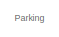
[diagram: root canvas - part 1/7, top left region]
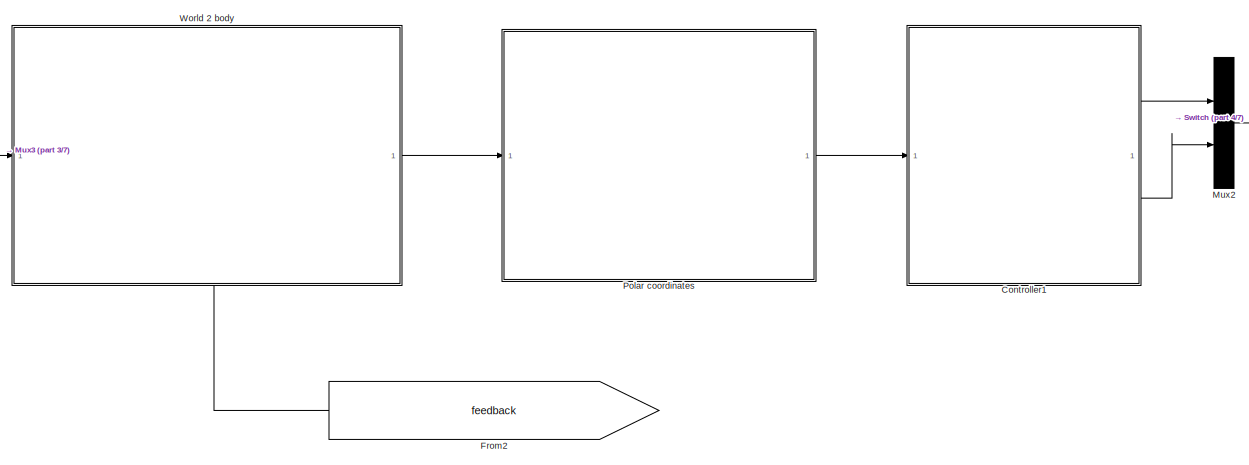
[diagram: root canvas - part 2/7, top center region]
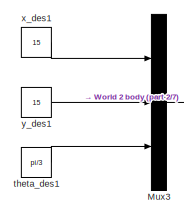
[diagram: root canvas - part 3/7, top left region]
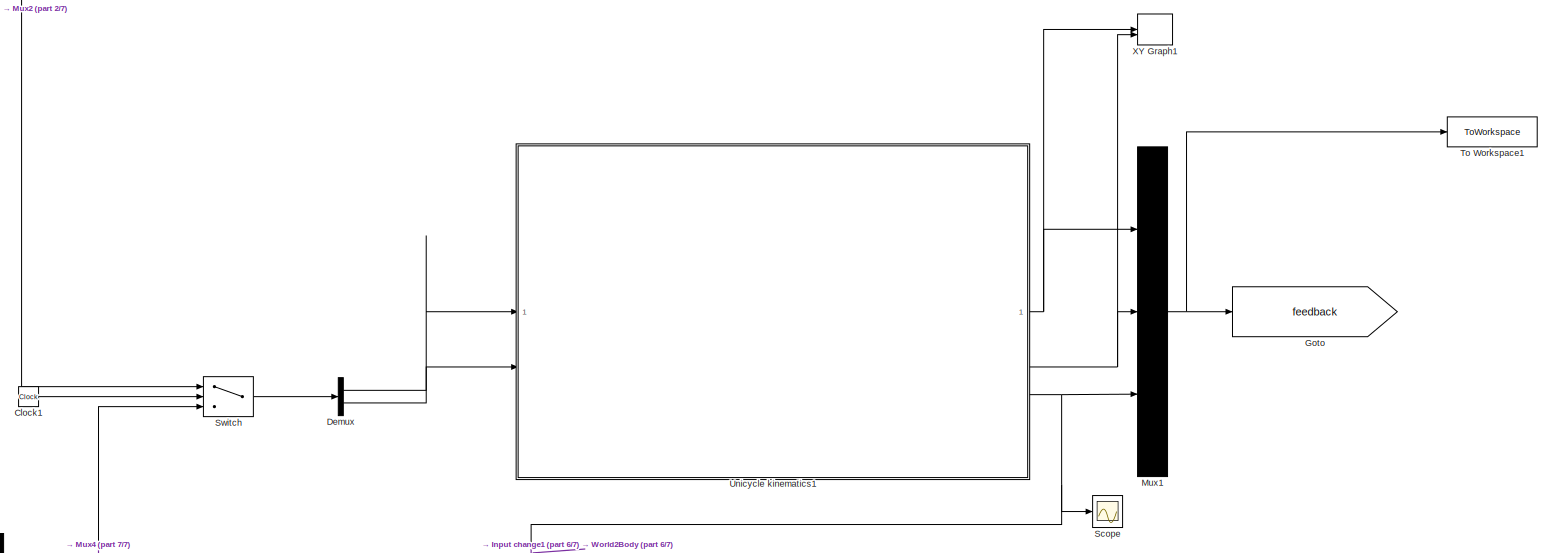
[diagram: root canvas - part 4/7, middle right region]
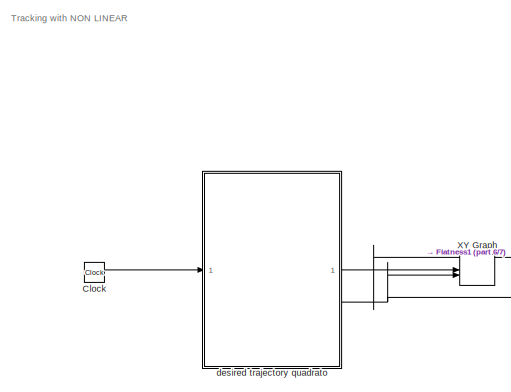
[diagram: root canvas - part 5/7, bottom left region]
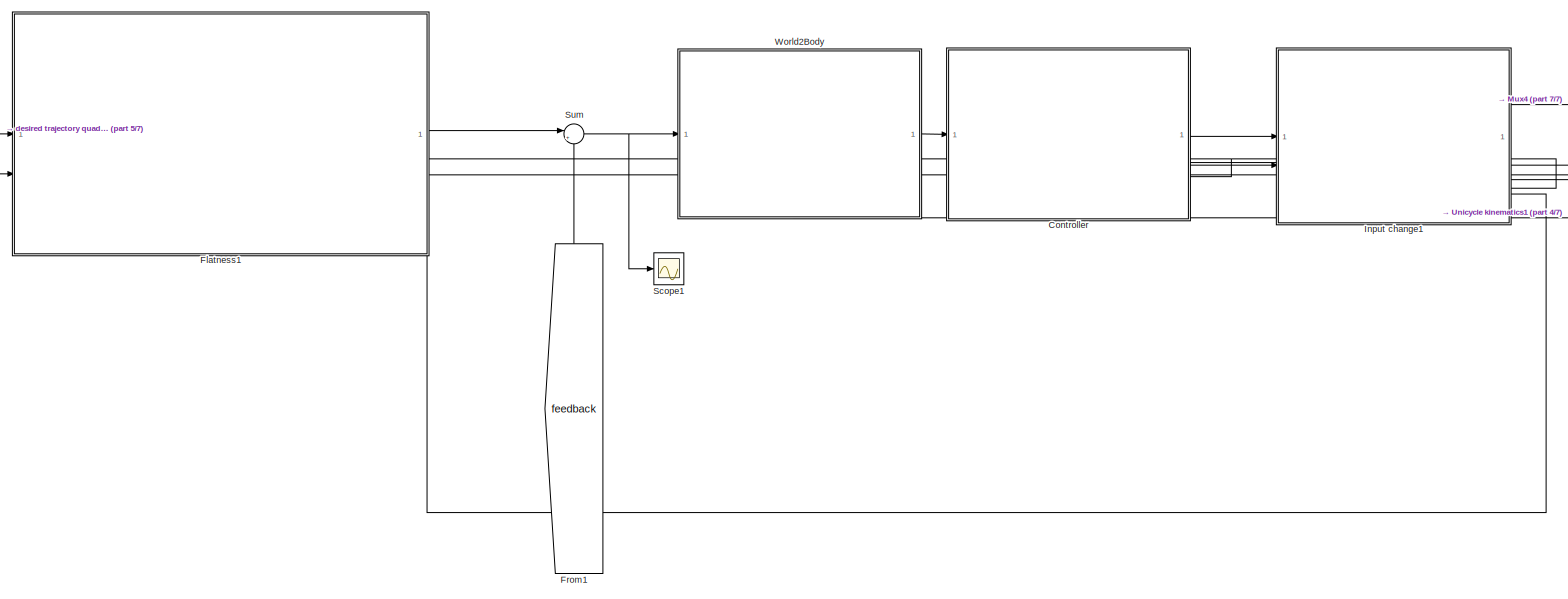
[diagram: root canvas - part 6/7, bottom left region]
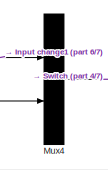
[diagram: root canvas - part 7/7, bottom center region]
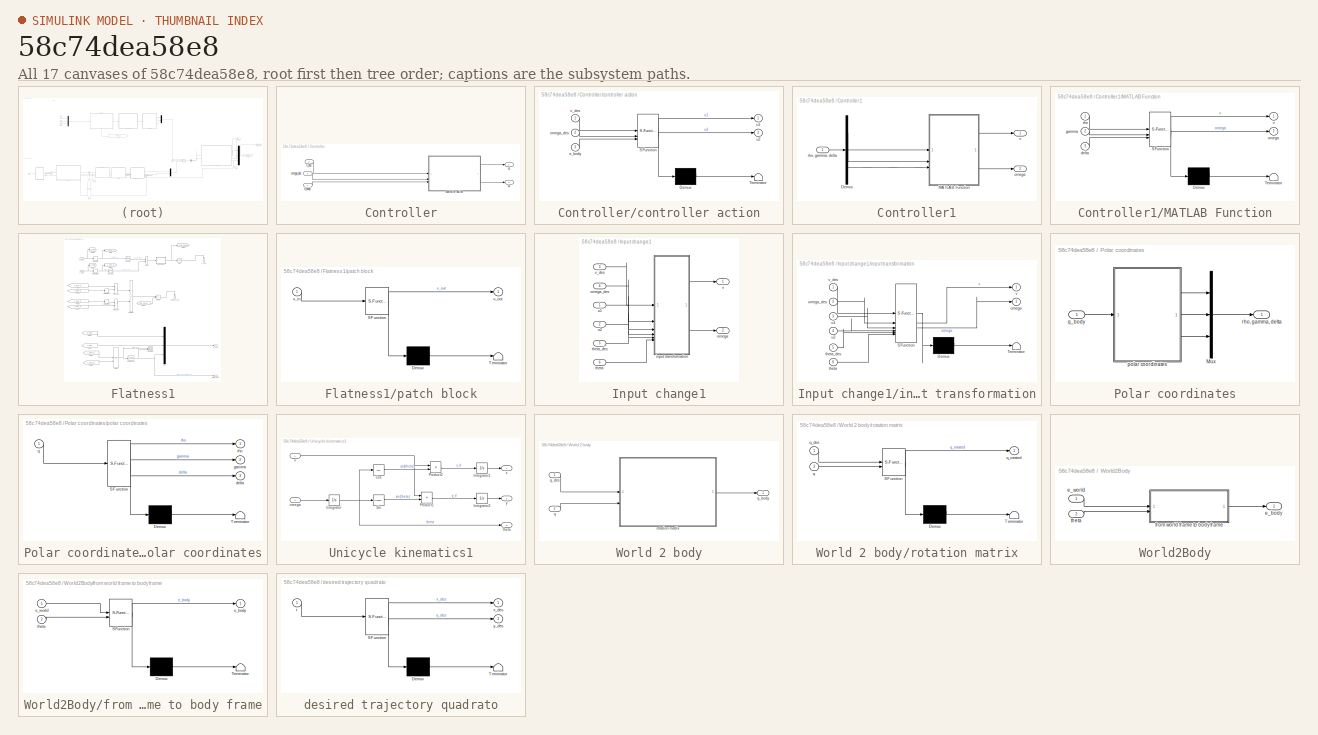
[diagram: thumbnail index - all 17 canvases of the model, root first then tree order]
MODEL slx_58c74dea58e8
KIND model
CONFIG AbsTol = auto
CONFIG EnableMultiTasking = off
CONFIG FixedStep = 1e-3
CONFIG MaxStep = 0.01
CONFIG MinStep = auto
CONFIG RelTol = 1e-3
CONFIG SampleTimeConstraint = Unconstrained
CONFIG SolverName = ode5
CONFIG StartTime = 0.0
CONFIG StopTime = 100
BLOCK [Clock] Clock
BLOCK [Clock] Clock1
BLOCK [SubSystem] Controller
  PortSchema = {"entries":[{"content":{"sides":[{"content":{"connectorIds":["In1"]},"type":"ConnectorPlacement.EquallySpacedRectSide","uuid":"6a572e67-edde-4e1b-8365-e17ad9f48dde"},{"content":{"connectorIds":["Out1","Out2"],"side":"RIGHT"},"type":"ConnectorPlacement.EquallySpacedRectSide","uuid":"eef3ef4a-e0db-4110-95fe-7b093a8263df"},{"content":{"connectorIds":["In2","In3"],"side":"TOP"},"type":"ConnectorPlacem...<+258ch>
BLOCK [SubSystem] Controller/controller action
  ErrorFcn = Stateflow.Translate.translate
  PermitHierarchicalResolution = ExplicitOnly
  SFBlockType = MATLAB Function
  TreatAsAtomicUnit = on
BLOCK [Demux] Controller/controller action/ Demux 
  Outputs = 1
BLOCK [S-Function] Controller/controller action/ SFunction 
  EnableBusSupport = off
  FunctionName = sf_sfun
  PortCounts = [3 3]
  SFcnIsStateOwnerBlock = off
  SFunctionDeploymentMode = off
  Tag = Stateflow S-Function 1
BLOCK [Terminator] Controller/controller action/ Terminator 
BLOCK [Inport] Controller/controller action/e_body
  Port = 3
BLOCK [Inport] Controller/controller action/omega_des
  Port = 2
BLOCK [Outport] Controller/controller action/u1
BLOCK [Outport] Controller/controller action/u2
  Port = 2
BLOCK [Inport] Controller/controller action/v_des
BLOCK [Inport] Controller/e_body
BLOCK [Inport] Controller/omega_des
  Port = 3
BLOCK [Outport] Controller/u1
BLOCK [Outport] Controller/u2
  Port = 2
BLOCK [Inport] Controller/v_des
  Port = 2
BLOCK [SubSystem] Controller1
BLOCK [Demux] Controller1/Demux
  Outputs = 3
BLOCK [SubSystem] Controller1/MATLAB Function
  ErrorFcn = Stateflow.Translate.translate
  PermitHierarchicalResolution = ExplicitOnly
  SFBlockType = MATLAB Function
  TreatAsAtomicUnit = on
BLOCK [Demux] Controller1/MATLAB Function/ Demux 
  Outputs = 1
BLOCK [S-Function] Controller1/MATLAB Function/ SFunction 
  EnableBusSupport = off
  FunctionName = sf_sfun
  PortCounts = [3 3]
  SFcnIsStateOwnerBlock = off
  SFunctionDeploymentMode = off
  Tag = Stateflow S-Function 8
BLOCK [Terminator] Controller1/MATLAB Function/ Terminator 
BLOCK [Inport] Controller1/MATLAB Function/delta
  Port = 3
BLOCK [Inport] Controller1/MATLAB Function/gamma
  Port = 2
BLOCK [Outport] Controller1/MATLAB Function/omega
  Port = 2
BLOCK [Inport] Controller1/MATLAB Function/rho
BLOCK [Outport] Controller1/MATLAB Function/v
BLOCK [Outport] Controller1/omega
  Port = 2
BLOCK [Inport] Controller1/rho, gamma, delta
BLOCK [Outport] Controller1/v
BLOCK [Demux] Demux
  Outputs = 2
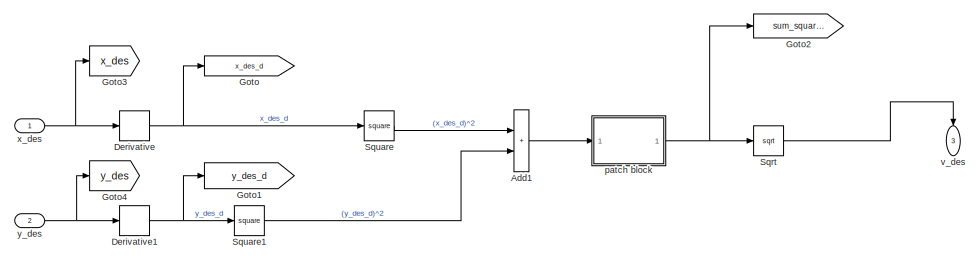
[diagram: Flatness1 - part 1/2, full width, top band]
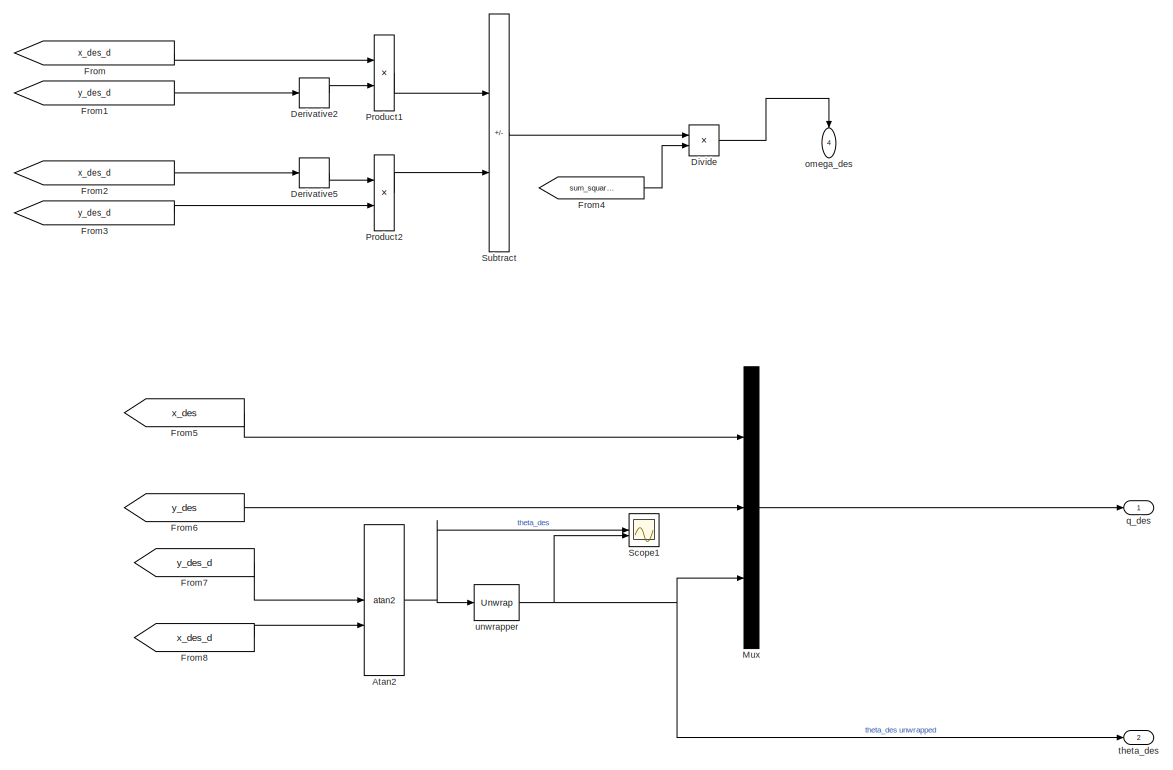
[diagram: Flatness1 - part 2/2, full width, middle band]
BLOCK [SubSystem] Flatness1
  PortSchema = {"entries":[{"content":{"sides":[{"content":{"connectorIds":["In1","In2"]},"type":"ConnectorPlacement.EquallySpacedRectSide","uuid":"6c807e7d-3abf-4a72-aeea-144278aa79f3"},{"content":{"connectorIds":["Out1"],"side":"RIGHT"},"type":"ConnectorPlacement.EquallySpacedRectSide","uuid":"d7bfc7e3-0ce1-4a6f-8c86-0e8591b05c3c"},{"content":{"connectorIds":["Out3","Out4"],"side":"TOP"},"type":"ConnectorPlace...<+409ch>
BLOCK [Sum] Flatness1/Add1
  IconShape = rectangular
BLOCK [Trigonometry] Flatness1/Atan2
  Operator = atan2
BLOCK [Derivative] Flatness1/Derivative
BLOCK [Derivative] Flatness1/Derivative1
BLOCK [Derivative] Flatness1/Derivative2
BLOCK [Derivative] Flatness1/Derivative5
BLOCK [Product] Flatness1/Divide
  Inputs = */
BLOCK [From] Flatness1/From
  GotoTag = x_des_d
BLOCK [From] Flatness1/From1
  GotoTag = y_des_d
BLOCK [From] Flatness1/From2
  GotoTag = x_des_d
BLOCK [From] Flatness1/From3
  GotoTag = y_des_d
BLOCK [From] Flatness1/From4
  GotoTag = sum_squares
BLOCK [From] Flatness1/From5
  GotoTag = x_des
BLOCK [From] Flatness1/From6
  GotoTag = y_des
BLOCK [From] Flatness1/From7
  GotoTag = y_des_d
BLOCK [From] Flatness1/From8
  GotoTag = x_des_d
BLOCK [Goto] Flatness1/Goto
  GotoTag = x_des_d
BLOCK [Goto] Flatness1/Goto1
  GotoTag = y_des_d
BLOCK [Goto] Flatness1/Goto2
  GotoTag = sum_squares
BLOCK [Goto] Flatness1/Goto3
  GotoTag = x_des
BLOCK [Goto] Flatness1/Goto4
  GotoTag = y_des
BLOCK [Mux] Flatness1/Mux
  DisplayOption = bar
  Inputs = 3
BLOCK [Product] Flatness1/Product1
BLOCK [Product] Flatness1/Product2
BLOCK [Scope] Flatness1/Scope1
  ActiveDisplayYMaximum = 5.497787143782138
  ActiveDisplayYMinimum = -2.3561944901923448
  DataLoggingDecimateData = on
  DataLoggingDecimation = 1
  DataLoggingSaveFormat = Array
  DataLoggingVariableName = ScopeData2
  Floating = off
  GraphicalSettings = {"Style":{"BackgroundColor":[0.12941176470588237,0.12941176470588237,0.12941176470588237],"AxesColor":[0.07058823529411765,0.07058823529411765,0.07058823529411765],"LabelsColor":[0.8509803921568627,0.8509803921568627,0.8509803921568627],"PreserveColors":false,"Visible":[true,true],"LineStyle":["-","-"],"LineWidth":[1.5,1.5],"BarWidth":[0.9,0.9],"LineColor":["auto","auto"],"LineFaceAlpha":[1,1],"Li...<+2136ch>
  MultipleDisplayCache = [{"MaxYLimMag":5.497787143782138,"MaxYLimReal":5.497787143782138,"MinYLimMag":0,"MinYLimReal":-2.3561944901923448,"PlotAsMagnitudePhase":false,"ShowGrid":true,"ShowLegend":true,"Title":"%<SignalLabel>","YLabel":""}]
  NumInputPorts = 2
  ScopeFrameLocation = window
  ShowLegend = on
  WasSavedAsWebScope = on
  WindowPosition = [1.000000,41.000000,2560.000000,1377.000000,]
BLOCK [Sqrt] Flatness1/Sqrt
BLOCK [Math] Flatness1/Square
  Operator = square
BLOCK [Math] Flatness1/Square1
  Operator = square
BLOCK [Sum] Flatness1/Subtract
  IconShape = rectangular
  Inputs = +-
BLOCK [Outport] Flatness1/omega_des
  NameLocation = left
  Port = 4
BLOCK [SubSystem] Flatness1/patch block
  ErrorFcn = Stateflow.Translate.translate
  PermitHierarchicalResolution = ExplicitOnly
  SFBlockType = MATLAB Function
  TreatAsAtomicUnit = on
BLOCK [Demux] Flatness1/patch block/ Demux 
  Outputs = 1
BLOCK [S-Function] Flatness1/patch block/ SFunction 
  EnableBusSupport = off
  FunctionName = sf_sfun
  PortCounts = [1 2]
  SFcnIsStateOwnerBlock = off
  SFunctionDeploymentMode = off
  Tag = Stateflow S-Function 9
BLOCK [Terminator] Flatness1/patch block/ Terminator 
BLOCK [Inport] Flatness1/patch block/v_in
BLOCK [Outport] Flatness1/patch block/v_out
BLOCK [Outport] Flatness1/q_des
BLOCK [Outport] Flatness1/theta_des
  Port = 2
BLOCK [Reference] Flatness1/unwrapper  REF=dspsigops/Unwrap
  SourceBlock = dspsigops/Unwrap
  SourceType = Unwrap
  UserDataPersistent = on
BLOCK [Outport] Flatness1/v_des
  NameLocation = left
  Port = 3
BLOCK [Inport] Flatness1/x_des
BLOCK [Inport] Flatness1/y_des
  Port = 2
BLOCK [From] From1
  GotoTag = feedback
  NameLocation = right
BLOCK [From] From2
  GotoTag = feedback
  NameLocation = top
BLOCK [Goto] Goto
  GotoTag = feedback
BLOCK [SubSystem] Input change1
  PortSchema = {"entries":[{"content":{"sides":[{"content":{"connectorIds":["In1","In2"]},"type":"ConnectorPlacement.EquallySpacedRectSide","uuid":"644d5157-9aae-4502-a3f2-982c62474d44"},{"content":{"connectorIds":["Out1","Out2"],"side":"RIGHT"},"type":"ConnectorPlacement.EquallySpacedRectSide","uuid":"021b21a7-af88-4509-a669-5af41800d21c"},{"content":{"connectorIds":["In3","In4"],"side":"TOP"},"type":"Connector...<+419ch>
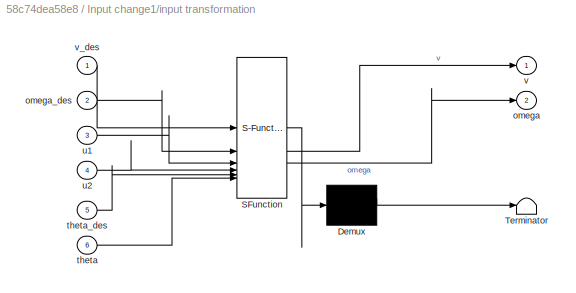
BLOCK [SubSystem] Input change1/input transformation
  ErrorFcn = Stateflow.Translate.translate
  PermitHierarchicalResolution = ExplicitOnly
  SFBlockType = MATLAB Function
  TreatAsAtomicUnit = on
BLOCK [Demux] Input change1/input transformation/ Demux 
  Outputs = 1
BLOCK [S-Function] Input change1/input transformation/ SFunction 
  EnableBusSupport = off
  FunctionName = sf_sfun
  PortCounts = [6 3]
  SFcnIsStateOwnerBlock = off
  SFunctionDeploymentMode = off
  Tag = Stateflow S-Function 3
BLOCK [Terminator] Input change1/input transformation/ Terminator 
BLOCK [Outport] Input change1/input transformation/omega
  Port = 2
BLOCK [Inport] Input change1/input transformation/omega_des
  Port = 2
BLOCK [Inport] Input change1/input transformation/theta
  Port = 6
BLOCK [Inport] Input change1/input transformation/theta_des
  Port = 5
BLOCK [Inport] Input change1/input transformation/u1
  Port = 3
BLOCK [Inport] Input change1/input transformation/u2
  Port = 4
BLOCK [Outport] Input change1/input transformation/v
BLOCK [Inport] Input change1/input transformation/v_des
BLOCK [Outport] Input change1/omega
  Port = 2
BLOCK [Inport] Input change1/omega_des
  Port = 4
BLOCK [Inport] Input change1/theta
  Port = 6
BLOCK [Inport] Input change1/theta_des
  Port = 5
BLOCK [Inport] Input change1/u1
BLOCK [Inport] Input change1/u2
  Port = 2
BLOCK [Outport] Input change1/v
BLOCK [Inport] Input change1/v_des
  Port = 3
BLOCK [Mux] Mux1
  DisplayOption = bar
  Inputs = 3
BLOCK [Mux] Mux2
  DisplayOption = bar
  Inputs = 2
BLOCK [Mux] Mux3
  DisplayOption = bar
  Inputs = 3
BLOCK [Mux] Mux4
  DisplayOption = bar
  Inputs = 2
BLOCK [SubSystem] Polar coordinates
BLOCK [Mux] Polar coordinates/Mux
  DisplayOption = bar
  Inputs = 3
BLOCK [SubSystem] Polar coordinates/polar coordinates
  ErrorFcn = Stateflow.Translate.translate
  PermitHierarchicalResolution = ExplicitOnly
  SFBlockType = MATLAB Function
  TreatAsAtomicUnit = on
BLOCK [Demux] Polar coordinates/polar coordinates/ Demux 
  Outputs = 1
BLOCK [S-Function] Polar coordinates/polar coordinates/ SFunction 
  EnableBusSupport = off
  FunctionName = sf_sfun
  PortCounts = [1 4]
  SFcnIsStateOwnerBlock = off
  SFunctionDeploymentMode = off
  Tag = Stateflow S-Function 4
BLOCK [Terminator] Polar coordinates/polar coordinates/ Terminator 
BLOCK [Outport] Polar coordinates/polar coordinates/delta
  Port = 3
BLOCK [Outport] Polar coordinates/polar coordinates/gamma
  Port = 2
BLOCK [Inport] Polar coordinates/polar coordinates/q
BLOCK [Outport] Polar coordinates/polar coordinates/rho
BLOCK [Inport] Polar coordinates/q_body
BLOCK [Outport] Polar coordinates/rho, gamma, delta
BLOCK [Scope] Scope
  ActiveDisplayYMaximum = 8.5659811714478664
  ActiveDisplayYMinimum = 3.9702909222077793
  DataLoggingVariableName = ScopeData1
  Floating = off
  GraphicalSettings = {"Style":{"BackgroundColor":[0.12941176470588237,0.12941176470588237,0.12941176470588237],"AxesColor":[0.07058823529411765,0.07058823529411765,0.07058823529411765],"LabelsColor":[0.8509803921568627,0.8509803921568627,0.8509803921568627],"PreserveColors":false,"Visible":[true],"LineStyle":["-"],"LineWidth":[1.5],"BarWidth":[0.9],"LineColor":["auto"],"LineFaceAlpha":[1],"LineEdgeAlpha":[1],"Marker":...<+2033ch>
  MultipleDisplayCache = [{"MaxYLimMag":10.482849696493965,"MaxYLimReal":8.5659811714478664,"MinYLimMag":0,"MinYLimReal":3.9702909222077793,"PlotAsMagnitudePhase":false,"ShowGrid":true,"ShowLegend":false,"Title":"%<SignalLabel>","YLabel":""}]
  NumInputPorts = 1
  ScopeFrameLocation = window
  WasSavedAsWebScope = on
  WindowPosition = [1.000000,41.000000,2560.000000,1377.000000,]
BLOCK [Scope] Scope1
  ActiveDisplayYMaximum = 1
  ActiveDisplayYMinimum = -1
  DataLoggingDecimateData = on
  DataLoggingDecimation = 1
  DataLoggingSaveFormat = Array
  DataLoggingVariableName = ScopeData3
  Floating = off
  GraphicalSettings = {"Style":{"BackgroundColor":[0.12941176470588237,0.12941176470588237,0.12941176470588237],"AxesColor":[0.07058823529411765,0.07058823529411765,0.07058823529411765],"LabelsColor":[0.8509803921568627,0.8509803921568627,0.8509803921568627],"PreserveColors":false,"Visible":[true,true,true],"LineStyle":["-","-","-"],"LineWidth":[1.5,1.5,1.5],"BarWidth":[0.9,0.9,0.9],"LineColor":["auto","auto","auto"],"...<+2239ch>
  MultipleDisplayCache = [{"MaxYLimMag":1,"MaxYLimReal":1,"MinYLimMag":0,"MinYLimReal":-1,"PlotAsMagnitudePhase":false,"ShowGrid":true,"ShowLegend":false,"Title":"%<SignalLabel>","YLabel":""}]
  NumInputPorts = 1
  ScopeFrameLocation = window
  WasSavedAsWebScope = on
  WindowPosition = [1.000000,41.000000,2560.000000,1377.000000,]
BLOCK [Sum] Sum
  Inputs = |+-
BLOCK [Switch] Switch
  Criteria = u2 > Threshold
  InputSameDT = off
  SaturateOnIntegerOverflow = off
  Threshold = 40
BLOCK [ToWorkspace] To Workspace1
  FixptAsFi = on
  MaxDataPoints = inf
  SampleTime = -1
  SaveFormat = Timeseries
  VariableName = sim_pose
BLOCK [SubSystem] Unicycle kinematics1
BLOCK [Trigonometry] Unicycle kinematics1/Cos
  Operator = cos
BLOCK [Integrator] Unicycle kinematics1/Integrator
BLOCK [Integrator] Unicycle kinematics1/Integrator1
BLOCK [Integrator] Unicycle kinematics1/Integrator2
BLOCK [Product] Unicycle kinematics1/Product1
BLOCK [Product] Unicycle kinematics1/Product2
BLOCK [Trigonometry] Unicycle kinematics1/Sin
BLOCK [Inport] Unicycle kinematics1/omega
  Port = 2
BLOCK [Outport] Unicycle kinematics1/theta
  Port = 3
BLOCK [Inport] Unicycle kinematics1/v
BLOCK [Outport] Unicycle kinematics1/x
BLOCK [Outport] Unicycle kinematics1/y
  Port = 2
BLOCK [SubSystem] World 2 body
  PortSchema = {"entries":[{"content":{"sides":[{"content":{"connectorIds":["In1"]},"type":"ConnectorPlacement.EquallySpacedRectSide","uuid":"d6332ee4-6e37-4568-865c-a04eee2f5a67"},{"content":{"connectorIds":["Out1"],"side":"RIGHT"},"type":"ConnectorPlacement.EquallySpacedRectSide","uuid":"8e88a442-f659-4873-b48a-1ad3acef8f2e"},{"content":{"side":"TOP"},"type":"ConnectorPlacement.EquallySpacedRectSide","uuid":"5...<+371ch>
BLOCK [Inport] World 2 body/q
  Port = 2
BLOCK [Outport] World 2 body/q_body
BLOCK [Inport] World 2 body/q_des
BLOCK [SubSystem] World 2 body/rotation matrix
  ErrorFcn = Stateflow.Translate.translate
  PermitHierarchicalResolution = ExplicitOnly
  SFBlockType = MATLAB Function
  TreatAsAtomicUnit = on
BLOCK [Demux] World 2 body/rotation matrix/ Demux 
  Outputs = 1
BLOCK [S-Function] World 2 body/rotation matrix/ SFunction 
  EnableBusSupport = off
  FunctionName = sf_sfun
  PortCounts = [2 2]
  SFcnIsStateOwnerBlock = off
  SFunctionDeploymentMode = off
  Tag = Stateflow S-Function 7
BLOCK [Terminator] World 2 body/rotation matrix/ Terminator 
BLOCK [Inport] World 2 body/rotation matrix/q
  Port = 2
BLOCK [Inport] World 2 body/rotation matrix/q_des
BLOCK [Outport] World 2 body/rotation matrix/q_rotated
BLOCK [SubSystem] World2Body
  PortSchema = {"entries":[{"content":{"sides":[{"content":{"connectorIds":["In1"]},"type":"ConnectorPlacement.EquallySpacedRectSide","uuid":"d6332ee4-6e37-4568-865c-a04eee2f5a67"},{"content":{"connectorIds":["Out1"],"side":"RIGHT"},"type":"ConnectorPlacement.EquallySpacedRectSide","uuid":"8e88a442-f659-4873-b48a-1ad3acef8f2e"},{"content":{"side":"TOP"},"type":"ConnectorPlacement.EquallySpacedRectSide","uuid":"5...<+371ch>
BLOCK [Outport] World2Body/e_body
BLOCK [Inport] World2Body/e_world
BLOCK [SubSystem] World2Body/from world frame to body frame
  ErrorFcn = Stateflow.Translate.translate
  PermitHierarchicalResolution = ExplicitOnly
  SFBlockType = MATLAB Function
  TreatAsAtomicUnit = on
BLOCK [Demux] World2Body/from world frame to body frame/ Demux 
  Outputs = 1
BLOCK [S-Function] World2Body/from world frame to body frame/ SFunction 
  EnableBusSupport = off
  FunctionName = sf_sfun
  PortCounts = [2 2]
  SFcnIsStateOwnerBlock = off
  SFunctionDeploymentMode = off
  Tag = Stateflow S-Function 2
BLOCK [Terminator] World2Body/from world frame to body frame/ Terminator 
BLOCK [Outport] World2Body/from world frame to body frame/e_body
BLOCK [Inport] World2Body/from world frame to body frame/e_world
BLOCK [Inport] World2Body/from world frame to body frame/theta
  Port = 2
BLOCK [Inport] World2Body/theta
  Port = 2
BLOCK [Record] XY Graph
  CompatibilityTag = XY
  FileSettingsInternal = {"entries":[{"content":{"excelSettings":{"content":{},"type":"Streamout.ExcelSettings"},"parquetSettings":{"content":{},"type":"Streamout.ParquetSettings"}},"type":"Streamout.FileSettingStorage","uuid":""}],"packageUris":["http:\/\/schema.mathworks.com\/mf0\/streamout_blocks\/R2020a"],"version":"1.0"}
  FrameSettings = [0, 0]
  Layout = [1 1]
  NumPorts = 2.0
  SignalsInternal = {"entries":[{"content":{"signals":[{"content":{"blockPath":[],"dimensions":[1],"domain":"","lineColor":"#a2142f","plots":[ 1 ],"port":1,"sid":[""],"signalID":1,"signalName":"desired trajectory quadrato:1"},"type":"RecordBlkView.Signal","uuid":""},{"content":{"blockPath":[],"dimensions":[1],"domain":"","lineColor":"#139fff","plots":[ 1 ],"port":2,"sid":[""],"signalID":2,"signalName":"desired trajec...<+204ch>
  VisualizationBindings = {"xyplotplugin":{"info":[{"series":[{"bindingParametersList":[{"parameter":"X-Axis","signalID":1,"signalName":"desired trajectory quadrato:1"},{"parameter":"Y-Axis","signalID":2,"signalName":"desired trajectory quadrato:2"}],"seriesID":0}],"subplotID":1}]}}
BLOCK [Record] XY Graph1
  CompatibilityTag = XY
  FileSettingsInternal = {"entries":[{"content":{"excelSettings":{"content":{},"type":"Streamout.ExcelSettings"},"parquetSettings":{"content":{},"type":"Streamout.ParquetSettings"}},"type":"Streamout.FileSettingStorage","uuid":""}],"packageUris":["http:\/\/schema.mathworks.com\/mf0\/streamout_blocks\/R2020a"],"version":"1.0"}
  FrameSettings = [0, 0]
  Layout = [1 1]
  NumPorts = 2.0
  SignalsInternal = {"entries":[{"content":{"signals":[{"content":{"blockPath":[],"dimensions":[1],"domain":"","lineColor":"#a2142f","plots":[ 1 ],"port":1,"sid":[""],"signalID":1,"signalName":"Unicycle kinematics1:1"},"type":"RecordBlkView.Signal","uuid":""},{"content":{"blockPath":[],"dimensions":[1],"domain":"","lineColor":"#139fff","plots":[ 1 ],"port":2,"sid":[""],"signalID":2,"signalName":"Unicycle kinematics1:...<+190ch>
  VisualizationBindings = {"xyplotplugin":{"info":[{"series":[{"bindingParametersList":[{"parameter":"X-Axis","signalID":1,"signalName":"Unicycle kinematics1:1"},{"parameter":"Y-Axis","signalID":2,"signalName":"Unicycle kinematics1:2"}],"seriesID":0}],"subplotID":1}]}}
BLOCK [SubSystem] desired trajectory quadrato
  ErrorFcn = Stateflow.Translate.translate
  PermitHierarchicalResolution = ExplicitOnly
  SFBlockType = MATLAB Function
  TreatAsAtomicUnit = on
BLOCK [Demux] desired trajectory quadrato/ Demux 
  Outputs = 1
BLOCK [S-Function] desired trajectory quadrato/ SFunction 
  EnableBusSupport = off
  FunctionName = sf_sfun
  PortCounts = [1 3]
  SFcnIsStateOwnerBlock = off
  SFunctionDeploymentMode = off
  Tag = Stateflow S-Function 6
BLOCK [Terminator] desired trajectory quadrato/ Terminator 
BLOCK [Inport] desired trajectory quadrato/t
BLOCK [Outport] desired trajectory quadrato/x_des
BLOCK [Outport] desired trajectory quadrato/y_des
  Port = 2
BLOCK [Constant] theta_des1
  Value = pi/3
BLOCK [Constant] x_des1
  Value = 15
BLOCK [Constant] y_des1
  Value = 15
ANNOTATION (root): Parking
ANNOTATION (root): Tracking with NON LINEAR
LINE Clock1:1 -> Switch:2
LINE Clock:1 -> desired trajectory quadrato:1
LINE Controller/controller action:1 -> Controller/u1:1
LINE Controller/controller action:2 -> Controller/u2:1
LINE Controller/e_body:1 -> Controller/controller action:3
LINE Controller/omega_des:1 -> Controller/controller action:2
LINE Controller/v_des:1 -> Controller/controller action:1
LINE Controller1/Demux:1 -> Controller1/MATLAB Function:1
LINE Controller1/Demux:2 -> Controller1/MATLAB Function:2
LINE Controller1/Demux:3 -> Controller1/MATLAB Function:3
LINE Controller1/MATLAB Function:1 -> Controller1/v:1
LINE Controller1/MATLAB Function:2 -> Controller1/omega:1
LINE Controller1/rho, gamma, delta:1 -> Controller1/Demux:1
LINE Controller1:1 -> Mux2:1
LINE Controller1:2 -> Mux2:2
LINE Controller:1 -> Input change1:1
LINE Controller:2 -> Input change1:2
LINE Demux:1 -> Unicycle kinematics1:1
LINE Demux:2 -> Unicycle kinematics1:2
LINE Flatness1/Add1:1 -> Flatness1/patch block:1
NET Flatness1/Atan2:1 -> Flatness1/Scope1:1, Flatness1/unwrapper:1
NET Flatness1/Derivative1:1 -> Flatness1/Goto1:1, Flatness1/Square1:1
LINE Flatness1/Derivative2:1 -> Flatness1/Product1:2
LINE Flatness1/Derivative5:1 -> Flatness1/Product2:1
NET Flatness1/Derivative:1 -> Flatness1/Goto:1, Flatness1/Square:1
LINE Flatness1/Divide:1 -> Flatness1/omega_des:1
LINE Flatness1/From1:1 -> Flatness1/Derivative2:1
LINE Flatness1/From2:1 -> Flatness1/Derivative5:1
LINE Flatness1/From3:1 -> Flatness1/Product2:2
LINE Flatness1/From4:1 -> Flatness1/Divide:2
LINE Flatness1/From5:1 -> Flatness1/Mux:1
LINE Flatness1/From6:1 -> Flatness1/Mux:2
LINE Flatness1/From7:1 -> Flatness1/Atan2:1
LINE Flatness1/From8:1 -> Flatness1/Atan2:2
LINE Flatness1/From:1 -> Flatness1/Product1:1
LINE Flatness1/Mux:1 -> Flatness1/q_des:1
LINE Flatness1/Product1:1 -> Flatness1/Subtract:1
LINE Flatness1/Product2:1 -> Flatness1/Subtract:2
LINE Flatness1/Sqrt:1 -> Flatness1/v_des:1
LINE Flatness1/Square1:1 -> Flatness1/Add1:2
LINE Flatness1/Square:1 -> Flatness1/Add1:1
LINE Flatness1/Subtract:1 -> Flatness1/Divide:1
NET Flatness1/patch block:1 -> Flatness1/Goto2:1, Flatness1/Sqrt:1
NET Flatness1/unwrapper:1 -> Flatness1/Mux:3, Flatness1/Scope1:2, Flatness1/theta_des:1
NET Flatness1/x_des:1 -> Flatness1/Derivative:1, Flatness1/Goto3:1
NET Flatness1/y_des:1 -> Flatness1/Derivative1:1, Flatness1/Goto4:1
LINE Flatness1:1 -> Sum:1
LINE Flatness1:2 -> Input change1:5
NET Flatness1:3 -> Controller:2, Input change1:3
NET Flatness1:4 -> Controller:3, Input change1:4
LINE From1:1 -> Sum:2
LINE From2:1 -> World 2 body:2
LINE Input change1/input transformation:1 -> Input change1/v:1
LINE Input change1/input transformation:2 -> Input change1/omega:1
LINE Input change1/omega_des:1 -> Input change1/input transformation:2
LINE Input change1/theta:1 -> Input change1/input transformation:6
LINE Input change1/theta_des:1 -> Input change1/input transformation:5
LINE Input change1/u1:1 -> Input change1/input transformation:3
LINE Input change1/u2:1 -> Input change1/input transformation:4
LINE Input change1/v_des:1 -> Input change1/input transformation:1
LINE Input change1:1 -> Mux4:1
LINE Input change1:2 -> Mux4:2
NET Mux1:1 -> Goto:1, To Workspace1:1
LINE Mux2:1 -> Switch:1
LINE Mux3:1 -> World 2 body:1
LINE Mux4:1 -> Switch:3
LINE Polar coordinates/Mux:1 -> Polar coordinates/rho, gamma, delta:1
LINE Polar coordinates/polar coordinates:1 -> Polar coordinates/Mux:1
LINE Polar coordinates/polar coordinates:2 -> Polar coordinates/Mux:2
LINE Polar coordinates/polar coordinates:3 -> Polar coordinates/Mux:3
LINE Polar coordinates/q_body:1 -> Polar coordinates/polar coordinates:1
LINE Polar coordinates:1 -> Controller1:1
NET Sum:1 -> Scope1:1, World2Body:1
LINE Switch:1 -> Demux:1
LINE Unicycle kinematics1/Cos:1 -> Unicycle kinematics1/Product2:2
LINE Unicycle kinematics1/Integrator1:1 -> Unicycle kinematics1/x:1
LINE Unicycle kinematics1/Integrator2:1 -> Unicycle kinematics1/y:1
NET Unicycle kinematics1/Integrator:1 -> Unicycle kinematics1/Cos:1, Unicycle kinematics1/Sin:1, Unicycle kinematics1/theta:1
LINE Unicycle kinematics1/Product1:1 -> Unicycle kinematics1/Integrator2:1
LINE Unicycle kinematics1/Product2:1 -> Unicycle kinematics1/Integrator1:1
LINE Unicycle kinematics1/Sin:1 -> Unicycle kinematics1/Product1:2
LINE Unicycle kinematics1/omega:1 -> Unicycle kinematics1/Integrator:1
NET Unicycle kinematics1/v:1 -> Unicycle kinematics1/Product1:1, Unicycle kinematics1/Product2:1
NET Unicycle kinematics1:1 -> Mux1:1, XY Graph1:1
NET Unicycle kinematics1:2 -> Mux1:2, XY Graph1:2
NET Unicycle kinematics1:3 -> Input change1:6, Mux1:3, Scope:1, World2Body:2
LINE World 2 body/q:1 -> World 2 body/rotation matrix:2
LINE World 2 body/q_des:1 -> World 2 body/rotation matrix:1
LINE World 2 body/rotation matrix:1 -> World 2 body/q_body:1
LINE World 2 body:1 -> Polar coordinates:1
LINE World2Body/e_world:1 -> World2Body/from world frame to body frame:1
LINE World2Body/from world frame to body frame:1 -> World2Body/e_body:1
LINE World2Body/theta:1 -> World2Body/from world frame to body frame:2
LINE World2Body:1 -> Controller:1
NET desired trajectory quadrato:1 -> Flatness1:1, XY Graph:1
NET desired trajectory quadrato:2 -> Flatness1:2, XY Graph:2
LINE theta_des1:1 -> Mux3:3
LINE x_des1:1 -> Mux3:1
LINE y_des1:1 -> Mux3:2
note: NET lines group one-source signal fan-out (src -> all destinations, sorted); 1:1 wires keep LINE
CHART Controller/controller action states=1 transitions=1
  STATE_LABEL 'eML_blk_kernel()'
  STATE_LABEL 'SCRIPT:\nfunction [u1, u2] = fcn(v_des, omega_des, e_body)\n\n% TO DO: parametri da modfiicare\nb = 4;\nxi = 1/sqrt(2);\n\n\n% auxiliary\ne1 = e_body(1);\ne2 = e_body(2);\ne3 = e_body(3);\n\n\n% parametri controllore\nk2 = b;\n\nif abs(v_des) < 1e-4\n    if v_des >= 0\n        v_des = 1e-4;\n    else\n        v_des = -1e-4;\n    end\nend\n\nif (abs(sin(e3)/e3) > 0.001)\n    temp = sin(e3)/e3;\nelse\n    temp = 1;\nend\n\n\nk1 = ...<+96ch>'
CHART World2Body/from world frame to body frame states=1 transitions=1
  STATE_LABEL 'eML_blk_kernel()'
  STATE_LABEL 'SCRIPT:\nfunction e_body = fcn(e_world, theta)\n\n\n% Transformation matrix\nR = [cos(theta), sin(theta), 0; \n    -sin(theta), cos(theta), 0;\n    0, 0, 1];\n\n% get error in body frame\ne_body = R*e_world;\n'
CHART Input change1/input transformation states=1 transitions=1
  STATE_LABEL 'eML_blk_kernel()'
  STATE_LABEL 'SCRIPT:\nfunction [v, omega] = fcn(v_des, omega_des, u1, u2, theta_des, theta)\n\n\nv = v_des * cos(theta_des-theta) - u1;\nomega = omega_des - u2;\n'
CHART Polar coordinates/polar coordinates states=1 transitions=1
  STATE_LABEL 'eML_blk_kernel()'
  STATE_LABEL 'SCRIPT:\nfunction [rho, gamma, delta] = fcn(q)\n\n%auxiliary\ndx = q(1);\ndy = q(2);\ndtheta = q(3);\n\n% trasformation in polar coordinates\nrho = sqrt(dx^2+dy^2);\ngamma = atan2(-dy, -dx) - dtheta;\ndelta = atan2(-dy, -dx);\n\n% !!!!!!!!!!!!!!!!!!!!!!!!Normalize angles to [-pi, pi]\ngamma = atan2(sin(gamma), cos(gamma));\ndelta = atan2(sin(delta), cos(delta));\n\n'
CHART desired trajectory quadrato states=1 transitions=1
  STATE_LABEL 'eML_blk_kernel()'
  STATE_LABEL 'SCRIPT:\nfunction [x_des, y_des] = fcn(t)\n\n% % configurable:\n% radius = 5;\n% omega_des = 0.2;\n% \n% % desired trajectory\n% x_des = -radius*cos(omega_des*t);\n% y_des = -radius*sin(omega_des*t);\n\n\n% % configurable:\n% radius = 10;\n% omega_des = 0.5;\n% \n% % desired trajectory\n% x_des = radius*cos(omega_des*t);\n% y_des = radius*sin(omega_des*t);\n% \n\n\nif t <= 10\n    x_des = 10+t;\n    y_des = 10;\nelseif  t...<+183ch>'
CHART World 2 body/rotation matrix states=1 transitions=1
  STATE_LABEL 'eML_blk_kernel()'
  STATE_LABEL 'SCRIPT:\nfunction q_rotated  = fcn(q_des, q)\n\ntheta_des = q_des(3);\n\n% rotation matrix\nR = [cos(theta_des), sin(theta_des), 0;\n    -sin(theta_des), cos(theta_des), 0; \n    0,              0,              1];\n\n% rotate\ndelta_q = q - q_des;\nq_rotated = R*delta_q;\n'
CHART Controller1/MATLAB Function states=1 transitions=1
  STATE_LABEL 'eML_blk_kernel()'
  STATE_LABEL 'SCRIPT:\nfunction [v , omega] = fcn(rho, gamma, delta)\n\n% adjust gains\nk1 = 2;\nk2 = 3;\nk3 = 5;\n\n\n% controller\n\nv = k1*rho*cos(gamma);\n\nif (abs(sin(gamma)/gamma) > 0.001)\n    temp = sin(gamma)/gamma;\nelse\n    temp = 1;\nend\n\nomega = k2*gamma + (k1*temp*cos(gamma))*(gamma+k3*delta);\n\n\n\n'
CHART Flatness1/patch block states=1 transitions=1
  STATE_LABEL 'eML_blk_kernel()'
  STATE_LABEL 'SCRIPT:\nfunction v_out = fcn(v_in)\n\nif abs(v_in) < 1e-4\n    if v_in >= 0\n        v_in = 1e-4;\n    else\n        v_in = -1e-4;\n    end\nend\nv_out = v_in;\n\n'
CHART  states=0 transitions=0
CHART  states=0 transitions=0
CHART  states=0 transitions=0
CHART  states=0 transitions=0
CHART  states=0 transitions=0
CHART  states=0 transitions=0
CHART  states=0 transitions=0
CHART  states=0 transitions=0
